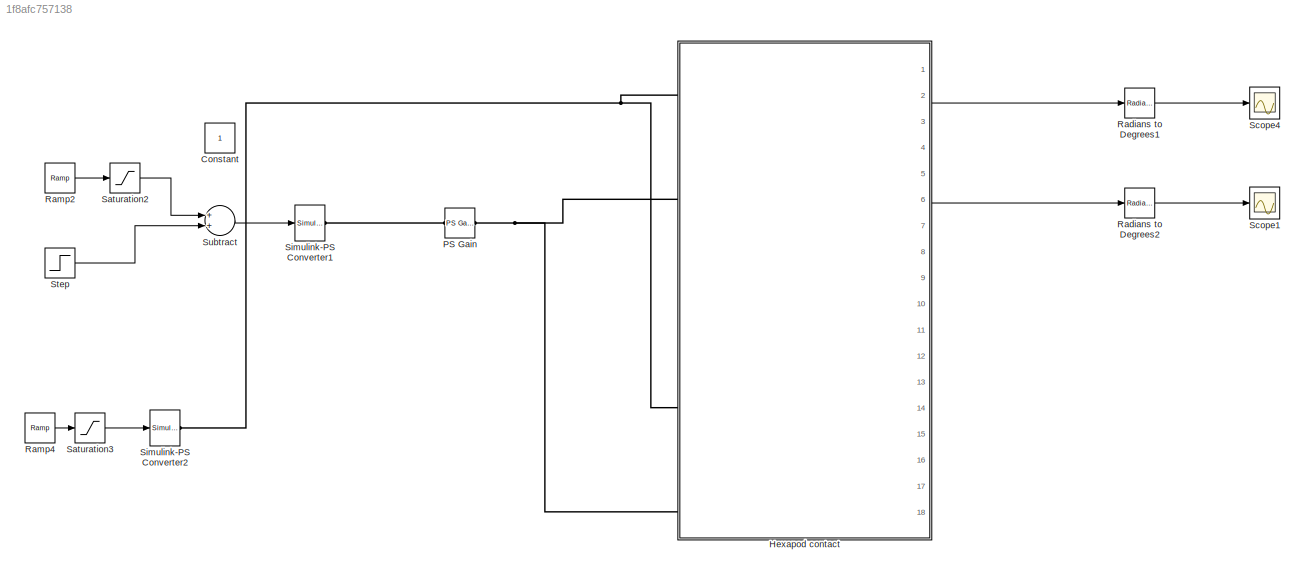
MODEL slx_1f8afc757138
KIND model
BLOCK [Constant] Constant
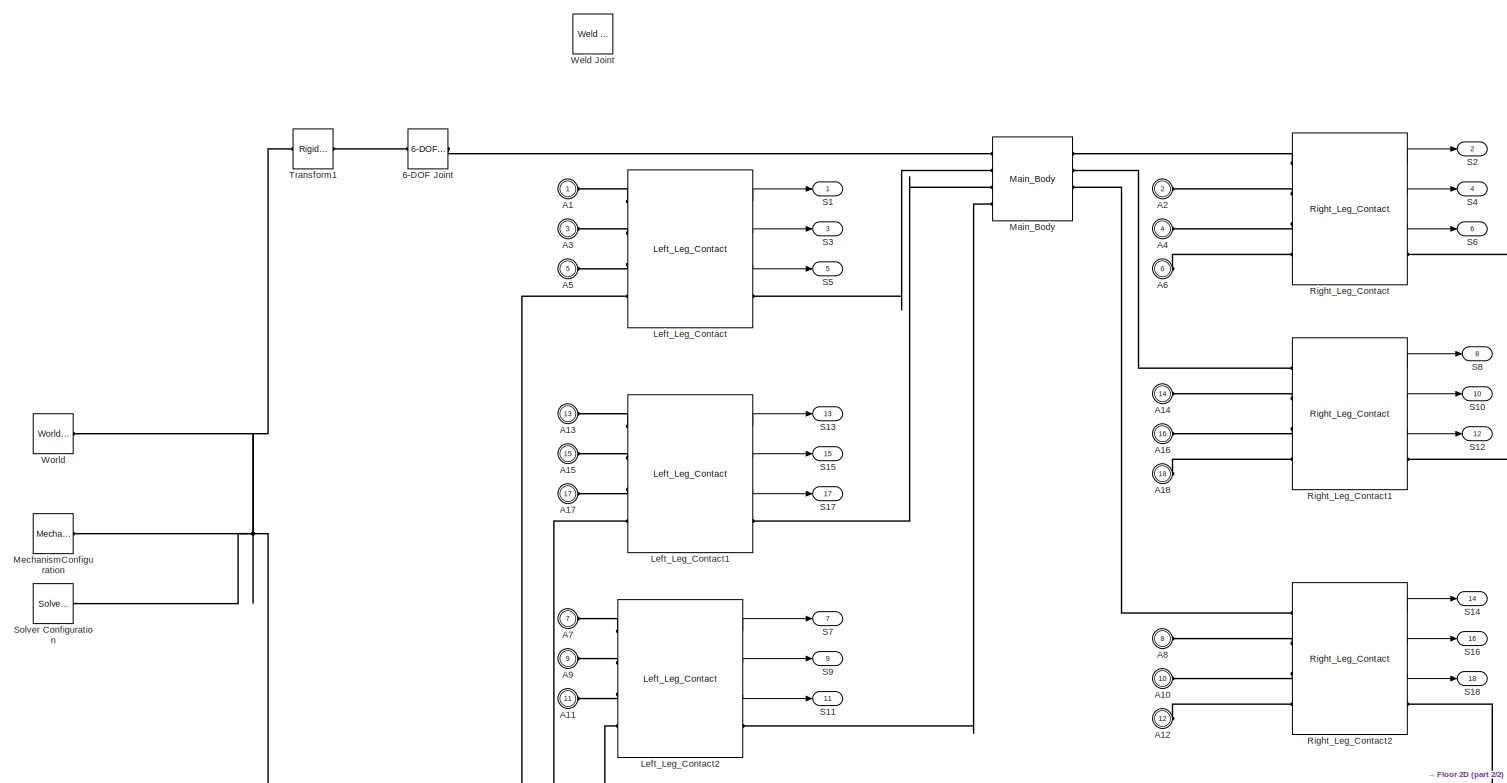
[diagram: Hexapod contact - part 1/2, middle left region]
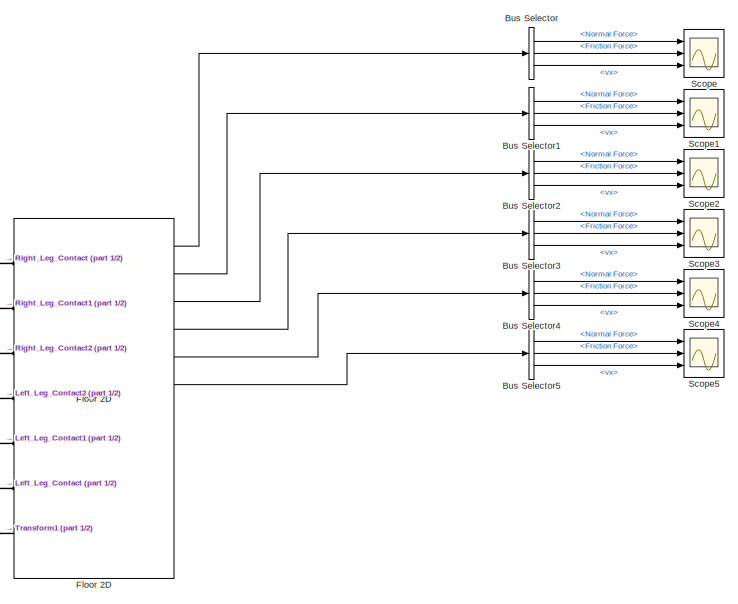
[diagram: Hexapod contact - part 2/2, bottom right region]
BLOCK [SubSystem] Hexapod contact
  AncestorBlock = HexapodLib/Hexapod contact
  Ports = [0, 18, 0, 0, 0, 18]
  RequestExecContextInheritance = off
BLOCK [Reference] Hexapod contact/6-DOF Joint  REF=sm_lib/Joints/6-DOF Joint
  BlockFunction = simmechanics.library.joints.sixdof_joint
  ClassName = SixDofJoint
  CompositeWrenchDir = FollowerOnBase
  CompositeWrenchFrame = BaseFrame
  LogSimulationData = off
  Ports = [0, 0, 0, 0, 0, 1, 1]
  PxDampingCoefficient = 0
  PxDampingCoefficientUnits = N/(m/s)
  PxEquilibriumPosition = 0
  PxEquilibriumPositionUnits = m
  PxMotionActuationMode = ComputedMotion
  PxPositionTargetPriority = High
  PxPositionTargetSpecify = off
  PxPositionTargetValue = 0
  PxPositionTargetValueUnits = m
  PxSenseAcceleration = off
  PxSensePosition = off
  PxSenseTorqueForce = off
  PxSenseVelocity = off
  PxSpringStiffness = 0
  PxSpringStiffnessUnits = N/m
  PxTorqueActuationMode = NoTorque
  PxVelocityTargetPriority = High
  PxVelocityTargetSpecify = off
  PxVelocityTargetValue = 0
  PxVelocityTargetValueUnits = m/s
  PyDampingCoefficient = 0
  PyDampingCoefficientUnits = N/(m/s)
  PyEquilibriumPosition = 0
  PyEquilibriumPositionUnits = m
  PyMotionActuationMode = ComputedMotion
  PyPositionTargetPriority = High
  PyPositionTargetSpecify = off
  PyPositionTargetValue = 0
  PyPositionTargetValueUnits = m
  PySenseAcceleration = off
  PySensePosition = off
  PySenseTorqueForce = off
  PySenseVelocity = off
  PySpringStiffness = 0
  PySpringStiffnessUnits = N/m
  PyTorqueActuationMode = NoTorque
  PyVelocityTargetPriority = High
  PyVelocityTargetSpecify = off
  PyVelocityTargetValue = 0
  PyVelocityTargetValueUnits = m/s
  PzDampingCoefficient = 0
  PzDampingCoefficientUnits = N/(m/s)
  PzEquilibriumPosition = 0
  PzEquilibriumPositionUnits = m
  PzMotionActuationMode = ComputedMotion
  PzPositionTargetPriority = High
  PzPositionTargetSpecify = off
  PzPositionTargetValue = 0
  PzPositionTargetValueUnits = m
  PzSenseAcceleration = off
  PzSensePosition = off
  PzSenseTorqueForce = off
  PzSenseVelocity = off
  PzSpringStiffness = 0
  PzSpringStiffnessUnits = N/m
  PzTorqueActuationMode = NoTorque
  PzVelocityTargetPriority = High
  PzVelocityTargetSpecify = off
  PzVelocityTargetValue = 0
  PzVelocityTargetValueUnits = m/s
  SenseConstraintForce = off
  SenseConstraintForceX = off
  SenseConstraintForceY = off
  SenseConstraintForceZ = off
  SenseConstraintTorque = off
  SenseConstraintTorqueX = off
  SenseConstraintTorqueY = off
  SenseConstraintTorqueZ = off
  SenseTotalForce = off
  SenseTotalForceX = off
  SenseTotalForceY = off
  SenseTotalForceZ = off
  SenseTotalTorque = off
  SenseTotalTorqueX = off
  SenseTotalTorqueY = off
  SenseTotalTorqueZ = off
  SourceBlock = sm_lib/Joints/6-DOF Joint
  SourceType = 6-DOF Joint
  SphActuateTorque = off
  SphActuateTorqueX = off
  SphActuateTorqueY = off
  SphActuateTorqueZ = off
  SphActuationFrame = BaseFrame
  SphDampingCoefficient = 0
  SphDampingCoefficientUnits = N*m/(deg/s)
  SphDefPosBaseAlignAxisA = +Y
  SphDefPosBaseAlignAxisB = +Z
  SphDefPosFollAlignAxisA = +X
  SphDefPosFollAlignAxisB = +Y
  SphDefPosRotationAngle = 0.0
  SphDefPosRotationAngleUnits = deg
  SphDefPosRotationArbitraryAxis = [0 0 1]
  SphDefPosRotationMatrix = [1 0 0; 0 1 0; 0 0 1]
  SphDefPosRotationMethod = None
  SphDefPosRotationStandardAxis = +Z
  SphEqPosBaseAlignAxisA = +Y
  SphEqPosBaseAlignAxisB = +Z
  SphEqPosFollAlignAxisA = +X
  SphEqPosFollAlignAxisB = +Y
  SphEqPosRotationAngle = 0.0
  SphEqPosRotationAngleUnits = deg
  SphEqPosRotationArbitraryAxis = [0 0 1]
  SphEqPosRotationMatrix = [1 0 0; 0 1 0; 0 0 1]
  SphEqPosRotationMethod = None
  SphEqPosRotationStandardAxis = +Z
  SphMotionActuationMode = ComputedMotion
  SphPositionTargetBaseAlignAxisA = +Y
  SphPositionTargetBaseAlignAxisB = +Z
  SphPositionTargetFollAlignAxisA = +X
  SphPositionTargetFollAlignAxisB = +Y
  SphPositionTargetPriority = High
  SphPositionTargetRotationAngle = 0.0
  SphPositionTargetRotationAngleUnits = deg
  SphPositionTargetRotationArbitraryAxis = [0 0 1]
  SphPositionTargetRotationMatrix = [1 0 0; 0 1 0; 0 0 1]
  SphPositionTargetRotationMethod = None
  SphPositionTargetRotationStandardAxis = +Z
  SphPositionTargetSpecify = off
  SphSenseAcceleration = off
  SphSenseAccelerationX = off
  SphSenseAccelerationY = off
  SphSenseAccelerationZ = off
  SphSensePosition = off
  SphSenseTorqueForce = off
  SphSenseTorqueX = off
  SphSenseTorqueY = off
  SphSenseTorqueZ = off
  SphSenseVelocity = off
  SphSenseVelocityX = off
  SphSenseVelocityY = off
  SphSenseVelocityZ = off
  SphSensingFrame = BaseFrame
  SphSpringStiffness = 0
  SphSpringStiffnessUnits = N*m/deg
  SphTorqueActuationMode = NoTorque
  SphVelocityTargetInFollowerFrame = on
  SphVelocityTargetPriority = High
  SphVelocityTargetSpecify = off
  SphVelocityTargetValue = [0 0 0]
  SphVelocityTargetValueUnits = deg/s
BLOCK [PMIOPort] Hexapod contact/A1
  Port = 1
  Side = Left
BLOCK [PMIOPort] Hexapod contact/A10
  Port = 10
  Side = Left
BLOCK [PMIOPort] Hexapod contact/A11
  Port = 11
  Side = Left
BLOCK [PMIOPort] Hexapod contact/A12
  Port = 12
  Side = Left
BLOCK [PMIOPort] Hexapod contact/A13
  Port = 13
  Side = Left
BLOCK [PMIOPort] Hexapod contact/A14
  Port = 14
  Side = Left
BLOCK [PMIOPort] Hexapod contact/A15
  Port = 15
  Side = Left
BLOCK [PMIOPort] Hexapod contact/A16
  Port = 16
  Side = Left
BLOCK [PMIOPort] Hexapod contact/A17
  Port = 17
  Side = Left
BLOCK [PMIOPort] Hexapod contact/A18
  Port = 18
  Side = Left
BLOCK [PMIOPort] Hexapod contact/A2
  Port = 2
  Side = Left
BLOCK [PMIOPort] Hexapod contact/A3
  Port = 3
  Side = Left
BLOCK [PMIOPort] Hexapod contact/A4
  Port = 4
  Side = Left
BLOCK [PMIOPort] Hexapod contact/A5
  Port = 5
  Side = Left
BLOCK [PMIOPort] Hexapod contact/A6
  Port = 6
  Side = Left
BLOCK [PMIOPort] Hexapod contact/A7
  Port = 7
  Side = Left
BLOCK [PMIOPort] Hexapod contact/A8
  Port = 8
  Side = Left
BLOCK [PMIOPort] Hexapod contact/A9
  Port = 9
  Side = Left
BLOCK [BusSelector] Hexapod contact/Bus Selector
  OutputSignals = Normal Force,Friction Force,Frame Sep.vx
  Ports = [1, 3]
BLOCK [BusSelector] Hexapod contact/Bus Selector1
  OutputSignals = Normal Force,Friction Force,Frame Sep.vx
  Ports = [1, 3]
BLOCK [BusSelector] Hexapod contact/Bus Selector2
  OutputSignals = Normal Force,Friction Force,Frame Sep.vx
  Ports = [1, 3]
BLOCK [BusSelector] Hexapod contact/Bus Selector3
  OutputSignals = Normal Force,Friction Force,Frame Sep.vx
  Ports = [1, 3]
BLOCK [BusSelector] Hexapod contact/Bus Selector4
  OutputSignals = Normal Force,Friction Force,Frame Sep.vx
  Ports = [1, 3]
BLOCK [BusSelector] Hexapod contact/Bus Selector5
  OutputSignals = Normal Force,Friction Force,Frame Sep.vx
  Ports = [1, 3]
BLOCK [Reference] Hexapod contact/Floor 2D  REF=HexapodLib/Floor 2D
  Ports = [0, 12, 0, 0, 0, 7]
  SourceBlock = HexapodLib/Floor 2D
  my_k = 0.5
  my_s = 0.7
  v_th = 0.0001
BLOCK [Reference] Hexapod contact/Left_Leg_Contact  REF=HexapodLib/Left_Leg_Contact
  FunctionWithSeparateData = off
  GeneratePreprocessorConditionals = off
  Ports = [0, 3, 0, 0, 0, 4, 1]
  ShowPortLabels = FromPortIcon
  SourceBlock = HexapodLib/Left_Leg_Contact
  SystemSampleTime = -1
BLOCK [Reference] Hexapod contact/Left_Leg_Contact1  REF=HexapodLib/Left_Leg_Contact
  FunctionWithSeparateData = off
  GeneratePreprocessorConditionals = off
  Ports = [0, 3, 0, 0, 0, 4, 1]
  ShowPortLabels = FromPortIcon
  SourceBlock = HexapodLib/Left_Leg_Contact
  SystemSampleTime = -1
BLOCK [Reference] Hexapod contact/Left_Leg_Contact2  REF=HexapodLib/Left_Leg_Contact
  FunctionWithSeparateData = off
  GeneratePreprocessorConditionals = off
  Ports = [0, 3, 0, 0, 0, 4, 1]
  ShowPortLabels = FromPortIcon
  SourceBlock = HexapodLib/Left_Leg_Contact
  SystemSampleTime = -1
BLOCK [Reference] Hexapod contact/Main_Body  REF=HexapodLib/Main_Body
  FunctionWithSeparateData = off
  GeneratePreprocessorConditionals = off
  Ports = [0, 0, 0, 0, 0, 4, 4]
  ShowPortLabels = FromPortIcon
  SourceBlock = HexapodLib/Main_Body
  SystemSampleTime = -1
BLOCK [Reference] Hexapod contact/MechanismConfiguration  REF=sm_lib/Utilities/Mechanism
Configuration
  BlockFunction = simmechanics.library.utilities.mechanism_configuration
  ClassName = MechanismConfiguration
  GravityUnits = m/s^2
  GravityVector = [0 0 -9.81]
  LinearizationDelta = 0.001
  LogSimulationData = off
  Ports = [0, 0, 0, 0, 0, 0, 1]
  SourceBlock = sm_lib/Utilities/Mechanism\nConfiguration
  SourceType = Mechanism\nConfiguration
  UniformGravity = Constant
BLOCK [Reference] Hexapod contact/Right_Leg_Contact  REF=HexapodLib/Right_Leg_Contact
  FunctionWithSeparateData = off
  GeneratePreprocessorConditionals = off
  Ports = [0, 3, 0, 0, 0, 4, 1]
  ShowPortLabels = FromPortIcon
  SourceBlock = HexapodLib/Right_Leg_Contact
  SystemSampleTime = -1
BLOCK [Reference] Hexapod contact/Right_Leg_Contact1  REF=HexapodLib/Right_Leg_Contact
  FunctionWithSeparateData = off
  GeneratePreprocessorConditionals = off
  Ports = [0, 3, 0, 0, 0, 4, 1]
  ShowPortLabels = FromPortIcon
  SourceBlock = HexapodLib/Right_Leg_Contact
  SystemSampleTime = -1
BLOCK [Reference] Hexapod contact/Right_Leg_Contact2  REF=HexapodLib/Right_Leg_Contact
  FunctionWithSeparateData = off
  GeneratePreprocessorConditionals = off
  Ports = [0, 3, 0, 0, 0, 4, 1]
  ShowPortLabels = FromPortIcon
  SourceBlock = HexapodLib/Right_Leg_Contact
  SystemSampleTime = -1
BLOCK [Outport] Hexapod contact/S1
  IconDisplay = Port number
BLOCK [Outport] Hexapod contact/S10
  IconDisplay = Port number
  Port = 10
BLOCK [Outport] Hexapod contact/S11
  IconDisplay = Port number
  Port = 11
BLOCK [Outport] Hexapod contact/S12
  IconDisplay = Port number
  Port = 12
BLOCK [Outport] Hexapod contact/S13
  IconDisplay = Port number
  Port = 13
BLOCK [Outport] Hexapod contact/S14
  IconDisplay = Port number
  Port = 14
BLOCK [Outport] Hexapod contact/S15
  IconDisplay = Port number
  Port = 15
BLOCK [Outport] Hexapod contact/S16
  IconDisplay = Port number
  Port = 16
BLOCK [Outport] Hexapod contact/S17
  IconDisplay = Port number
  Port = 17
BLOCK [Outport] Hexapod contact/S18
  IconDisplay = Port number
  Port = 18
BLOCK [Outport] Hexapod contact/S2
  IconDisplay = Port number
  Port = 2
BLOCK [Outport] Hexapod contact/S3
  IconDisplay = Port number
  Port = 3
BLOCK [Outport] Hexapod contact/S4
  IconDisplay = Port number
  Port = 4
BLOCK [Outport] Hexapod contact/S5
  IconDisplay = Port number
  Port = 5
BLOCK [Outport] Hexapod contact/S6
  IconDisplay = Port number
  Port = 6
BLOCK [Outport] Hexapod contact/S7
  IconDisplay = Port number
  Port = 7
BLOCK [Outport] Hexapod contact/S8
  IconDisplay = Port number
  Port = 8
BLOCK [Outport] Hexapod contact/S9
  IconDisplay = Port number
  Port = 9
BLOCK [Scope] Hexapod contact/Scope
  Floating = off
  NumInputPorts = 3
  Ports = [3]
  ShowLegends = off
  YMax = 2~0.00011~-4e-07
  YMin = 0.5~2e-05~-1.1e-06
BLOCK [Scope] Hexapod contact/Scope1
  Floating = off
  NumInputPorts = 3
  Ports = [3]
  ShowLegends = off
  YMax = 5~5~5
  YMin = -5~-5~-5
BLOCK [Scope] Hexapod contact/Scope2
  Floating = off
  NumInputPorts = 3
  Ports = [3]
  SaveName = ScopeData1
  ShowLegends = off
  YMax = 5~5~5
  YMin = -5~-5~-5
BLOCK [Scope] Hexapod contact/Scope3
  Floating = off
  NumInputPorts = 3
  Ports = [3]
  SaveName = ScopeData2
  ShowLegends = off
  YMax = 5~5~5
  YMin = -5~-5~-5
BLOCK [Scope] Hexapod contact/Scope4
  Floating = off
  NumInputPorts = 3
  Ports = [3]
  SaveName = ScopeData3
  ShowLegends = off
  YMax = 5~5~5
  YMin = -5~-5~-5
BLOCK [Scope] Hexapod contact/Scope5
  Floating = off
  NumInputPorts = 3
  Ports = [3]
  SaveName = ScopeData4
  ShowLegends = off
  YMax = 5~5~5
  YMin = -5~-5~-5
BLOCK [Reference] Hexapod contact/Solver Configuration  REF=nesl_utility/Solver
Configuration
  AbsTol = 1e-06
  Accelerate = off
  AutomaticFiltering = on
  DelaysMemoryBudget = 1024
  DoDC = off
  DoFixedCost = off
  EnableSwitchedLinearOptims = on
  FilteringTimeConstant = 0.001
  FrequencyDomain = off
  Harmonics = []
  LeftPortType = input
  LinearAlgebra = Sparse
  LocalSolverChoice = NE_BACKWARD_EULER_ADVANCER
  LocalSolverSampleTime = 0.001
  MaxModeIter = 2
  MaxNonlinIter = 3
  MinStep = 1e-09
  PhysicalDomain = network_engine_domain
  Ports = [0, 0, 0, 0, 0, 0, 1]
  Profile = off
  RelTol = 0.001
  ResidualTolerance = 1e-09
  RightPortType = generic
  SimulateNoise = off
  SourceBlock = nesl_utility/Solver\nConfiguration
  SourceType = Solver\nConfiguration
  SubClassName = solver
  ToWorkspace = off
  Tones = []
  UseCCode = off
  UseLocalSampling = off
  UseLocalSolver = off
BLOCK [Reference] Hexapod contact/Transform1  REF=sm_lib/Frames and
Transforms/Rigid
Transform
  BaseAlignAxisA = +Y
  BaseAlignAxisB = +Z
  BlockFunction = simmechanics.library.frames_transforms.rigid_transform
  ClassName = RigidTransform
  FollAlignAxisA = +X
  FollAlignAxisB = +Y
  LogSimulationData = off
  Ports = [0, 0, 0, 0, 0, 1, 1]
  RotationAngle = 0
  RotationAngleUnits = rad
  RotationArbitraryAxis = [0 0 0]
  RotationMatrix = [1 0 0; 0 1 0; 0 0 1]
  RotationMethod = None
  RotationStandardAxis = +Z
  SourceBlock = sm_lib/Frames and\nTransforms/Rigid\nTransform
  SourceType = Rigid\nTransform
  TranslationCartesianOffset = [0 0 17]
  TranslationLengthUnit = cm
  TranslationMethod = Cartesian
  TranslationROffset = 0
  TranslationROffsetUnits = m
  TranslationStandardAxis = +Z
  TranslationStandardOffset = 0
  TranslationThetaOffset = 0
  TranslationThetaOffsetUnits = deg
  TranslationZOffset = 0
  TranslationZOffsetUnits = m
BLOCK [Reference] Hexapod contact/Weld Joint  REF=sm_lib/Joints/Weld Joint
  BlockFunction = simmechanics.library.joints.weld_joint
  ClassName = WeldJoint
  Commented = on
  CompositeWrenchDir = FollowerOnBase
  CompositeWrenchFrame = BaseFrame
  LogSimulationData = off
  Ports = [0, 0, 0, 0, 0, 1, 1]
  SenseConstraintForce = off
  SenseConstraintForceX = off
  SenseConstraintForceY = off
  SenseConstraintForceZ = off
  SenseConstraintTorque = off
  SenseConstraintTorqueX = off
  SenseConstraintTorqueY = off
  SenseConstraintTorqueZ = off
  SenseTotalForce = off
  SenseTotalForceX = off
  SenseTotalForceY = off
  SenseTotalForceZ = off
  SenseTotalTorque = off
  SenseTotalTorqueX = off
  SenseTotalTorqueY = off
  SenseTotalTorqueZ = off
  SourceBlock = sm_lib/Joints/Weld Joint
  SourceType = Weld Joint
BLOCK [Reference] Hexapod contact/World  REF=sm_lib/Frames and
Transforms/World Frame
  BlockFunction = simmechanics.library.frames_transforms.world_frame
  ClassName = WorldFrame
  LogSimulationData = off
  Ports = [0, 0, 0, 0, 0, 0, 1]
  SourceBlock = sm_lib/Frames and\nTransforms/World Frame
  SourceType = World Frame
BLOCK [Reference] PS Gain  REF=fl_lib/Physical Signals/Functions/PS Gain
  ClassName = gain
  ComponentPath = foundation.physical_signal.functions.gain
  ComponentVariantNames = gain
  ComponentVariants = foundation.physical_signal.functions.gain
  LogSimulationData = off
  Ports = [0, 0, 0, 0, 0, 1, 1]
  SchemaVersion = 1
  SourceBlock = fl_lib/Physical Signals/Functions/PS Gain
  SourceFile = foundation.physical_signal.functions.gain
  SourceType = PS Gain
  gain = -1
  gain_unit = 1
BLOCK [Reference] Radians to Degrees1  REF=simulink_extras/Transformations/Radians
to Degrees
  Ports = [1, 1]
  SourceBlock = simulink_extras/Transformations/Radians\nto Degrees
  SourceType = RadiansToDegrees
BLOCK [Reference] Radians to Degrees2  REF=simulink_extras/Transformations/Radians
to Degrees
  Ports = [1, 1]
  SourceBlock = simulink_extras/Transformations/Radians\nto Degrees
  SourceType = RadiansToDegrees
BLOCK [Reference] Ramp2  REF=simulink/Sources/Ramp
  Ports = [0, 1]
  SourceBlock = simulink/Sources/Ramp
  SourceType = Ramp
  VectorParams1D = on
  X0 = 0
  slope = -0.3
  start = 1
BLOCK [Reference] Ramp4  REF=simulink/Sources/Ramp
  Ports = [0, 1]
  SourceBlock = simulink/Sources/Ramp
  SourceType = Ramp
  VectorParams1D = on
  X0 = 0
  slope = 0.15
  start = 15
BLOCK [Saturate] Saturation2
  InputPortMap = u0
  LowerLimit = -1.5
  Ports = [1, 1]
  UpperLimit = 1.5
BLOCK [Saturate] Saturation3
  InputPortMap = u0
  LowerLimit = -1.5
  Ports = [1, 1]
  UpperLimit = 1.5
BLOCK [Scope] Scope1
  Floating = off
  LegendLocations = 0.83903     0.85304     0.13114    0.064259
  MaxDataPoints = 50000
  NumInputPorts = 1
  Ports = [1]
  SaveName = ScopeData1
  ShowLegends = on
  YMax = 60
  YMin = 0
  ZoomMode = xonly
BLOCK [Scope] Scope4
  Floating = off
  LegendLocations = 0.83903     0.85304     0.13114    0.064259
  MaxDataPoints = 50000
  NumInputPorts = 1
  Ports = [1]
  ShowLegends = on
  YMax = 180
  YMin = -20
  ZoomMode = xonly
BLOCK [Reference] Simulink-PS Converter1  REF=nesl_utility/Simulink-PS
Converter
  AffineConversion = off
  Frequencies = []
  InputFilterTimeConstant = 0.001
  InputFiltering = on
  LeftPortType = input
  NoiseDistribution = none
  NoiseParameters = []
  PhysicalDomain = network_engine_domain
  Ports = [1, 0, 0, 0, 0, 0, 1]
  PseudoPeriodic = off
  RightPortType = output
  SimscapeFilterOrder = 2
  SourceBlock = nesl_utility/Simulink-PS\nConverter
  SourceType = Simulink-PS\nConverter
  SubClassName = ps_input
  UdotUserProvided = 1
  Unit = N*m
BLOCK [Reference] Simulink-PS Converter2  REF=nesl_utility/Simulink-PS
Converter
  AffineConversion = off
  Frequencies = []
  InputFilterTimeConstant = 0.001
  InputFiltering = on
  LeftPortType = input
  NoiseDistribution = none
  NoiseParameters = []
  PhysicalDomain = network_engine_domain
  Ports = [1, 0, 0, 0, 0, 0, 1]
  PseudoPeriodic = off
  RightPortType = output
  SimscapeFilterOrder = 2
  SourceBlock = nesl_utility/Simulink-PS\nConverter
  SourceType = Simulink-PS\nConverter
  SubClassName = ps_input
  UdotUserProvided = 1
  Unit = N*m
BLOCK [Step] Step
  After = 0.7
  SampleTime = 0
  Time = 30
BLOCK [Sum] Subtract
  InputSameDT = off
  OutDataTypeStr = Inherit: Inherit via internal rule
  Ports = [2, 1]
  SaturateOnIntegerOverflow = off
LINE Hexapod contact:2 -> Radians to Degrees1:1
LINE Hexapod contact:6 -> Radians to Degrees2:1
LINE Radians to Degrees1:1 -> Scope4:1
LINE Radians to Degrees2:1 -> Scope1:1
LINE Ramp2:1 -> Saturation2:1
LINE Ramp4:1 -> Saturation3:1
LINE Saturation2:1 -> Subtract:1
LINE Saturation3:1 -> Simulink-PS Converter2:1
LINE Step:1 -> Subtract:2
LINE Subtract:1 -> Simulink-PS Converter1:1
PNET net1: Hexapod contact:LConn14 -- Hexapod contact:LConn2 -- Simulink-PS Converter2:RConn1
PNET net2: Hexapod contact:LConn18 -- Hexapod contact:LConn6 -- PS Gain:RConn1
PLINE PS Gain:LConn1 -- Simulink-PS Converter1:RConn1
note: PNET lines group multi-terminal physical nets as a canonical sorted terminal list (undirected conserving connections); 2-terminal nets keep the pairwise PLINE form
